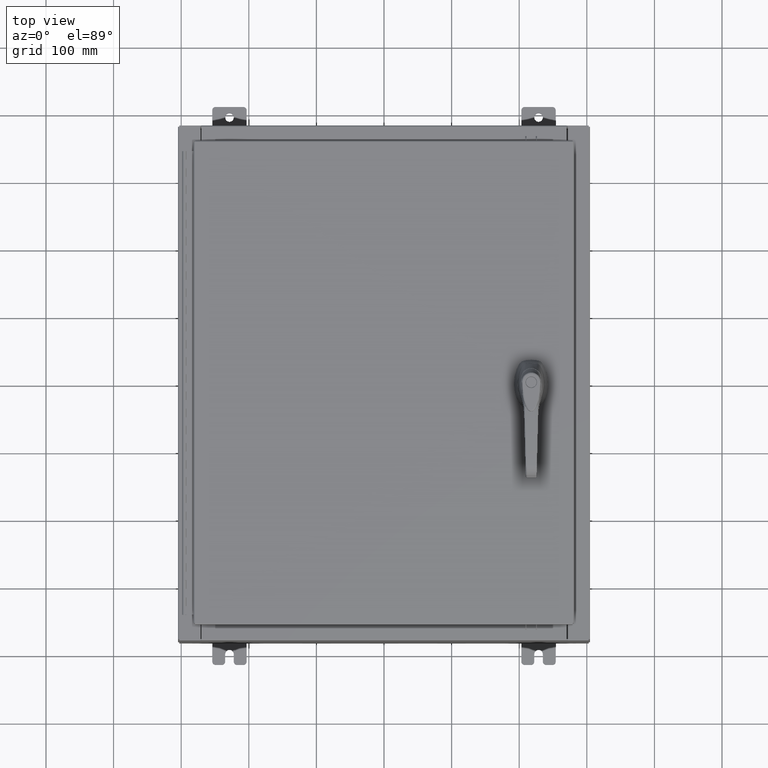
[diagram: clean part render]
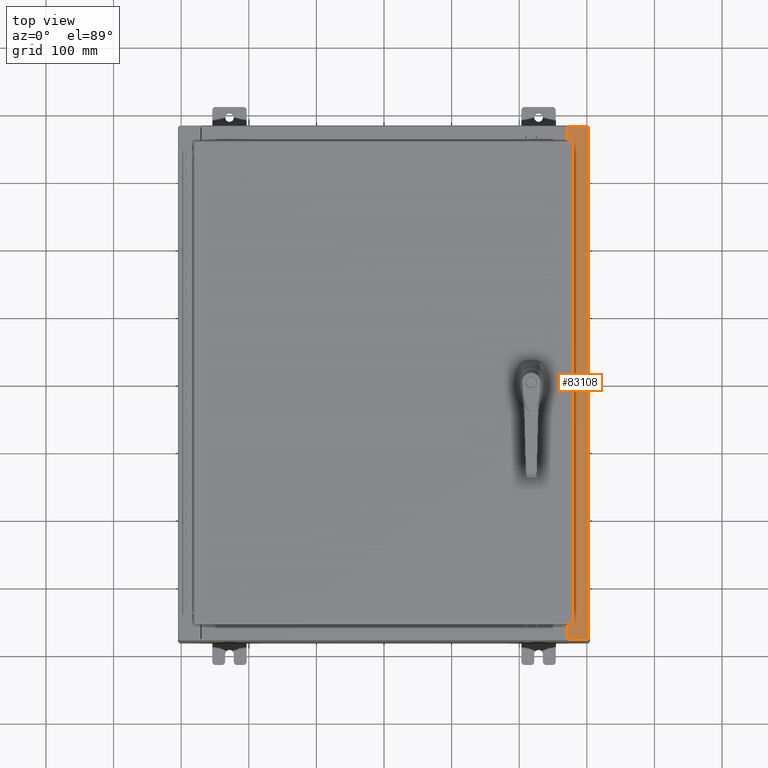
[diagram: same view with one face highlighted and labeled with its STEP entity id]
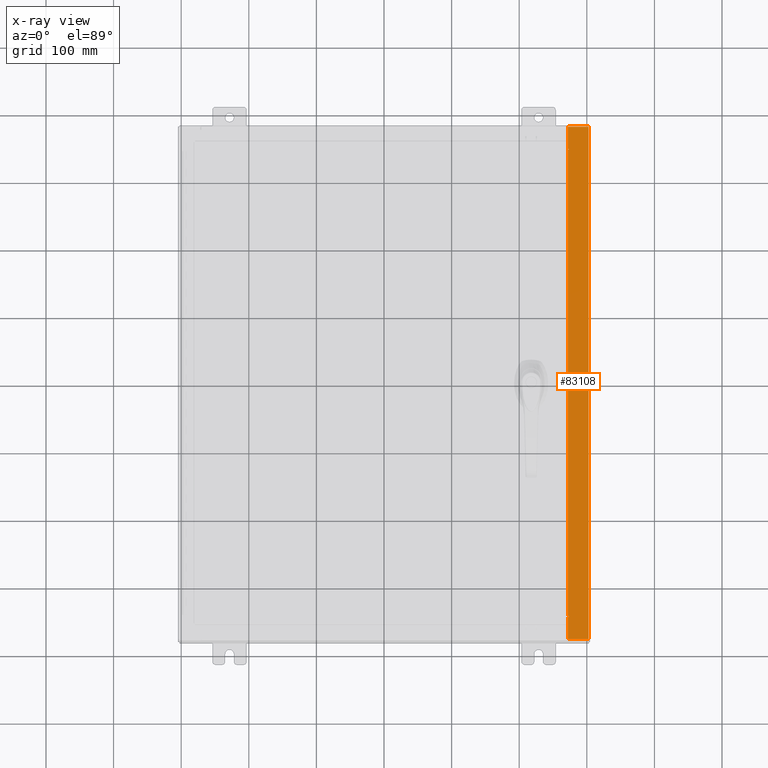
[diagram: x-ray of the same camera — body ghosted, the highlighted face saturated]
A machine part, top view. The second image highlights one B-rep face of the part: STEP entity #83108.
The next image is the same camera in x-ray: the body ghosted, the highlighted face saturated — about 0% of this face is hidden behind the body in this view.
In plain terms, the highlighted planar face has unit normal (-0, 0, -1).
Its self-contained STEP definition (entity closure, byte-faithful):
#2226 = LINE ( 'NONE', #56394, #5016 ) ;
#2380 = DIRECTION ( 'NONE',  ( 1.000000000000000000, 1.305543112181250400E-031, -5.349571789159789300E-015 ) ) ;
#3955 = LINE ( 'NONE', #66769, #94475 ) ;
#5016 = VECTOR ( 'NONE', #2380, 39.37007874015748100 ) ;
#6228 = CIRCLE ( 'NONE', #43373, 0.01867499999999949400 ) ;
#6379 = EDGE_LOOP ( 'NONE', ( #42120, #80659, #81240, #40958, #62409, #43110, #110402, #14713, #107081, #51731, #27405, #68786 ) ) ;
#6472 = CARTESIAN_POINT ( 'NONE',  ( 10.75005000000003400, -13.59375000000000000, 9.925300000000008900 ) ) ;
#7394 = LINE ( 'NONE', #70406, #100850 ) ;
#8630 = LINE ( 'NONE', #47940, #75122 ) ;
#9613 = CARTESIAN_POINT ( 'NONE',  ( 10.75005000000003400, 13.63109999999999800, 9.925300000000008900 ) ) ;
#11374 = VERTEX_POINT ( 'NONE', #91736 ) ;
#11564 = LINE ( 'NONE', #6472, #32737 ) ;
#12650 = DIRECTION ( 'NONE',  ( -0.0000000000000000000, -1.000000000000000000, -0.0000000000000000000 ) ) ;
#13255 = EDGE_CURVE ( 'NONE', #64769, #17052, #95205, .T. ) ;
#14269 = DIRECTION ( 'NONE',  ( 1.000000000000000000, 0.0000000000000000000, 0.0000000000000000000 ) ) ;
#14713 = ORIENTED_EDGE ( 'NONE', *, *, #60092, .F. ) ;
#15588 = VERTEX_POINT ( 'NONE', #63184 ) ;
#15609 = DIRECTION ( 'NONE',  ( -1.000000000000000000, 0.0000000000000000000, 0.0000000000000000000 ) ) ;
#16077 = CARTESIAN_POINT ( 'NONE',  ( 10.69970000000003200, -14.92529999999999800, 9.925300000000008900 ) ) ;
#17052 = VERTEX_POINT ( 'NONE', #64797 ) ;
#18178 = CARTESIAN_POINT ( 'NONE',  ( 10.75005000000003400, -13.59375000000000000, 9.925300000000008900 ) ) ;
#19950 = CIRCLE ( 'NONE', #31637, 0.01867499999999949400 ) ;
#20658 = LINE ( 'NONE', #76958, #116950 ) ;
#23421 = EDGE_CURVE ( 'NONE', #17052, #38044, #99566, .T. ) ;
#27405 = ORIENTED_EDGE ( 'NONE', *, *, #50287, .F. ) ;
#28509 = CARTESIAN_POINT ( 'NONE',  ( 10.71270000000003500, -13.59375000000000000, 9.925300000000008900 ) ) ;
#29616 = EDGE_CURVE ( 'NONE', #48075, #32347, #81707, .T. ) ;
#30120 = CARTESIAN_POINT ( 'NONE',  ( 11.91230000000003200, -14.92529999999999800, 9.925300000000001800 ) ) ;
#30439 = DIRECTION ( 'NONE',  ( -1.000000000000000000, 4.861730685829018000E-063, 5.349571789159789300E-015 ) ) ;
#31637 = AXIS2_PLACEMENT_3D ( 'NONE', #101399, #47110, #110540 ) ;
#31799 = EDGE_CURVE ( 'NONE', #56519, #84866, #2226, .T. ) ;
#32246 = CARTESIAN_POINT ( 'NONE',  ( 10.75005000000003400, 13.63109999999999800, 9.925300000000008900 ) ) ;
#32347 = VERTEX_POINT ( 'NONE', #93527 ) ;
#32737 = VECTOR ( 'NONE', #15609, 39.37007874015748100 ) ;
#33006 = VECTOR ( 'NONE', #14269, 39.37007874015748100 ) ;
#35187 = CARTESIAN_POINT ( 'NONE',  ( 10.75005000000003400, -13.63109999999999800, 9.925300000000008900 ) ) ;
#35327 = EDGE_CURVE ( 'NONE', #67712, #32347, #7394, .T. ) ;
#38044 = VERTEX_POINT ( 'NONE', #111199 ) ;
#40857 = VERTEX_POINT ( 'NONE', #18178 ) ;
#40958 = ORIENTED_EDGE ( 'NONE', *, *, #74583, .F. ) ;
#42094 = PLANE ( 'NONE',  #97684 ) ;
#42120 = ORIENTED_EDGE ( 'NONE', *, *, #94239, .F. ) ;
#43110 = ORIENTED_EDGE ( 'NONE', *, *, #35327, .T. ) ;
#43373 = AXIS2_PLACEMENT_3D ( 'NONE', #103074, #48781, #112213 ) ;
#45204 = FACE_OUTER_BOUND ( 'NONE', #6379, .T. ) ;
#47110 = DIRECTION ( 'NONE',  ( 5.349571789159788500E-015, 0.0000000000000000000, 1.000000000000000000 ) ) ;
#47940 = CARTESIAN_POINT ( 'NONE',  ( 10.69970000000003200, -5.494975343389772900E-030, 9.925300000000008900 ) ) ;
#48075 = VERTEX_POINT ( 'NONE', #9613 ) ;
#48564 = CARTESIAN_POINT ( 'NONE',  ( 5.335691853495958500E-014, 14.92529999999999800, 9.925300000000065700 ) ) ;
#48781 = DIRECTION ( 'NONE',  ( 5.349571789159788500E-015, 0.0000000000000000000, 1.000000000000000000 ) ) ;
#50287 = EDGE_CURVE ( 'NONE', #40857, #64769, #11564, .T. ) ;
#51138 = DIRECTION ( 'NONE',  ( -1.000000000000000000, 0.0000000000000000000, 5.349571789159788500E-015 ) ) ;
#51731 = ORIENTED_EDGE ( 'NONE', *, *, #13255, .F. ) ;
#52901 = DIRECTION ( 'NONE',  ( -0.0000000000000000000, 1.000000000000000000, -0.0000000000000000000 ) ) ;
#53632 = VERTEX_POINT ( 'NONE', #35187 ) ;
#55497 = VECTOR ( 'NONE', #52901, 39.37007874015748100 ) ;
#56394 = CARTESIAN_POINT ( 'NONE',  ( 5.335691853495958500E-014, -14.92529999999999800, 9.925300000000065700 ) ) ;
#56519 = VERTEX_POINT ( 'NONE', #16077 ) ;
#56968 = DIRECTION ( 'NONE',  ( -5.135634964896009300E-031, -1.000000000000000000, 2.747344792763031300E-045 ) ) ;
#60092 = EDGE_CURVE ( 'NONE', #38044, #48075, #6228, .T. ) ;
#61631 = DIRECTION ( 'NONE',  ( -5.135634964896009300E-031, -1.000000000000000000, 2.747344792763031300E-045 ) ) ;
#61811 = LINE ( 'NONE', #48564, #107263 ) ;
#62409 = ORIENTED_EDGE ( 'NONE', *, *, #90777, .T. ) ;
#63184 = CARTESIAN_POINT ( 'NONE',  ( 11.91230000000003200, 14.92529999999999800, 9.925300000000001800 ) ) ;
#64769 = VERTEX_POINT ( 'NONE', #28509 ) ;
#64797 = CARTESIAN_POINT ( 'NONE',  ( 10.71270000000003500, 13.59375000000000000, 9.925300000000008900 ) ) ;
#66769 = CARTESIAN_POINT ( 'NONE',  ( 11.91230000000003200, -14.92529999999999800, 9.925300000000001800 ) ) ;
#67712 = VERTEX_POINT ( 'NONE', #75445 ) ;
#68786 = ORIENTED_EDGE ( 'NONE', *, *, #81791, .F. ) ;
#70406 = CARTESIAN_POINT ( 'NONE',  ( 10.69970000000003200, -5.494975343389772900E-030, 9.925300000000008900 ) ) ;
#74583 = EDGE_CURVE ( 'NONE', #15588, #84866, #3955, .T. ) ;
#75122 = VECTOR ( 'NONE', #56968, 39.37007874015748100 ) ;
#75445 = CARTESIAN_POINT ( 'NONE',  ( 10.69970000000003200, 14.92529999999999800, 9.925300000000008900 ) ) ;
#76958 = CARTESIAN_POINT ( 'NONE',  ( 10.69970000000003200, -13.63109999999999800, 9.925300000000008900 ) ) ;
#77349 = DIRECTION ( 'NONE',  ( 1.000000000000000000, 0.0000000000000000000, 0.0000000000000000000 ) ) ;
#77495 = CARTESIAN_POINT ( 'NONE',  ( 10.71270000000003500, 13.59375000000000000, 9.925300000000008900 ) ) ;
#78867 = VECTOR ( 'NONE', #104675, 39.37007874015748100 ) ;
#80659 = ORIENTED_EDGE ( 'NONE', *, *, #114464, .T. ) ;
#81240 = ORIENTED_EDGE ( 'NONE', *, *, #31799, .T. ) ;
#81707 = LINE ( 'NONE', #32246, #78867 ) ;
#81791 = EDGE_CURVE ( 'NONE', #53632, #40857, #19950, .T. ) ;
#83108 = ADVANCED_FACE ( 'NONE', ( #45204 ), #42094, .F. ) ;
#84866 = VERTEX_POINT ( 'NONE', #30120 ) ;
#90777 = EDGE_CURVE ( 'NONE', #15588, #67712, #61811, .T. ) ;
#91736 = CARTESIAN_POINT ( 'NONE',  ( 10.69970000000003200, -13.63109999999999800, 9.925300000000008900 ) ) ;
#93527 = CARTESIAN_POINT ( 'NONE',  ( 10.69970000000003200, 13.63109999999999800, 9.925300000000008900 ) ) ;
#94239 = EDGE_CURVE ( 'NONE', #11374, #53632, #20658, .T. ) ;
#94475 = VECTOR ( 'NONE', #12650, 39.37007874015748100 ) ;
#95205 = LINE ( 'NONE', #107214, #55497 ) ;
#97684 = AXIS2_PLACEMENT_3D ( 'NONE', #105056, #105450, #51138 ) ;
#99566 = LINE ( 'NONE', #77495, #33006 ) ;
#100850 = VECTOR ( 'NONE', #61631, 39.37007874015748100 ) ;
#101399 = CARTESIAN_POINT ( 'NONE',  ( 10.75005000000003400, -13.61242500000000000, 9.925300000000008900 ) ) ;
#103074 = CARTESIAN_POINT ( 'NONE',  ( 10.75005000000003400, 13.61242500000000000, 9.925300000000008900 ) ) ;
#104675 = DIRECTION ( 'NONE',  ( -1.000000000000000000, 0.0000000000000000000, 0.0000000000000000000 ) ) ;
#105056 = CARTESIAN_POINT ( 'NONE',  ( 5.335691853495958500E-014, 0.0000000000000000000, 9.925300000000065700 ) ) ;
#105450 = DIRECTION ( 'NONE',  ( -5.349571789159788500E-015, 0.0000000000000000000, -1.000000000000000000 ) ) ;
#107081 = ORIENTED_EDGE ( 'NONE', *, *, #23421, .F. ) ;
#107214 = CARTESIAN_POINT ( 'NONE',  ( 10.71270000000003500, -13.59375000000000000, 9.925300000000008900 ) ) ;
#107263 = VECTOR ( 'NONE', #30439, 39.37007874015748100 ) ;
#110402 = ORIENTED_EDGE ( 'NONE', *, *, #29616, .F. ) ;
#110540 = DIRECTION ( 'NONE',  ( 1.000000000000000000, 0.0000000000000000000, 0.0000000000000000000 ) ) ;
#111199 = CARTESIAN_POINT ( 'NONE',  ( 10.75005000000003400, 13.59375000000000000, 9.925300000000008900 ) ) ;
#112213 = DIRECTION ( 'NONE',  ( 1.000000000000000000, 0.0000000000000000000, 0.0000000000000000000 ) ) ;
#114464 = EDGE_CURVE ( 'NONE', #11374, #56519, #8630, .T. ) ;
#116950 = VECTOR ( 'NONE', #77349, 39.37007874015748100 ) ;